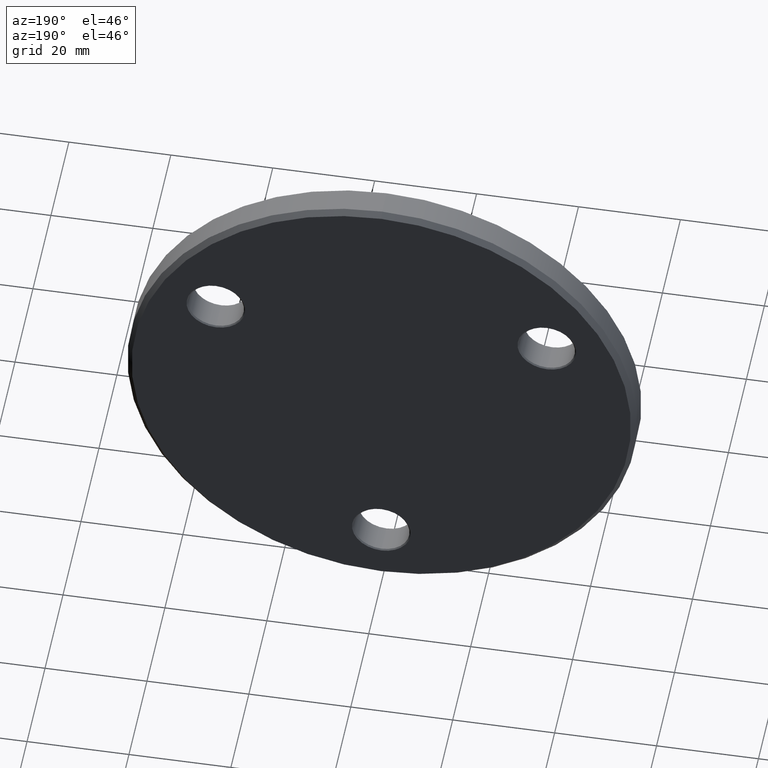
[diagram: clean part render]
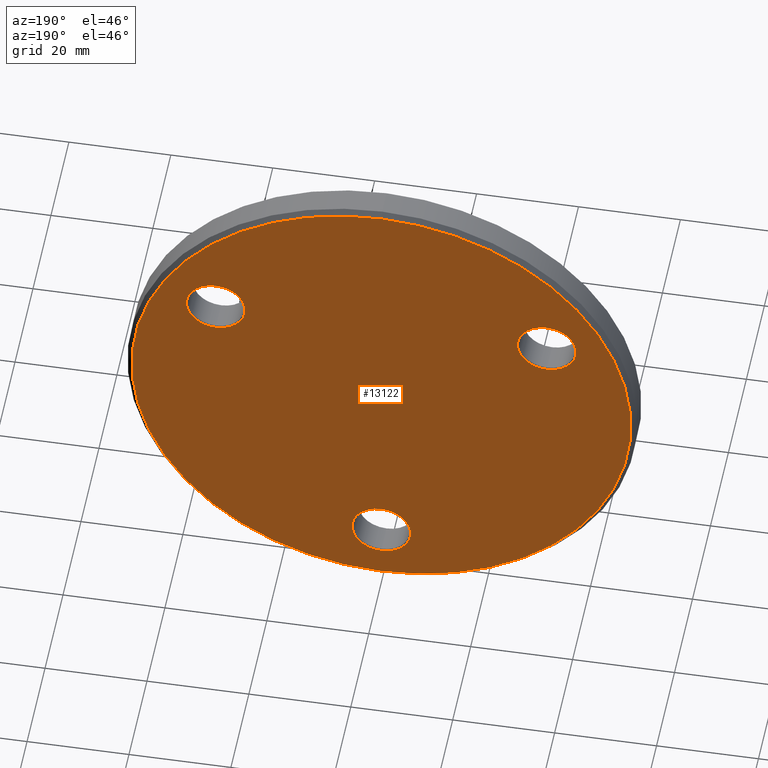
[diagram: same view with one face highlighted and labeled with its STEP entity id]
A machine part, auxiliary view. The second image highlights one B-rep face of the part: STEP entity #13122.
In plain terms, the highlighted planar face has unit normal (0, 1, 0).
Its self-contained STEP definition (entity closure, byte-faithful):
#261 = CARTESIAN_POINT ( 'NONE',  ( 32.47595264191645015, 6.000000000000000000, 18.74999999999999645 ) ) ;
#639 = DIRECTION ( 'NONE',  ( -0.000000000000000000, -1.000000000000000000, -0.000000000000000000 ) ) ;
#823 = ORIENTED_EDGE ( 'NONE', *, *, #10299, .T. ) ;
#961 = EDGE_CURVE ( 'NONE', #12895, #10992, #7882, .T. ) ;
#1145 = CARTESIAN_POINT ( 'NONE',  ( 0.000000000000000000, 6.000000000000000000, -49.00000000000002132 ) ) ;
#1268 = ORIENTED_EDGE ( 'NONE', *, *, #7532, .T. ) ;
#1280 = DIRECTION ( 'NONE',  ( 0.000000000000000000, 0.000000000000000000, 1.000000000000000000 ) ) ;
#1329 = EDGE_CURVE ( 'NONE', #9673, #10011, #9968, .T. ) ;
#1419 = AXIS2_PLACEMENT_3D ( 'NONE', #12653, #5580, #5547 ) ;
#2394 = FACE_BOUND ( 'NONE', #11115, .T. ) ;
#2409 = AXIS2_PLACEMENT_3D ( 'NONE', #11268, #12236, #7115 ) ;
#2755 = CARTESIAN_POINT ( 'NONE',  ( 6.062001655779400089E-15, 6.000000000000000000, 49.00000000000002132 ) ) ;
#2827 = EDGE_LOOP ( 'NONE', ( #1268, #8870 ) ) ;
#2939 = CIRCLE ( 'NONE', #10092, 49.00000000000002132 ) ;
#3003 = VERTEX_POINT ( 'NONE', #1145 ) ;
#3250 = CARTESIAN_POINT ( 'NONE',  ( 0.000000000000000000, 6.000000000000000000, 0.000000000000000000 ) ) ;
#3269 = VERTEX_POINT ( 'NONE', #2755 ) ;
#3523 = ORIENTED_EDGE ( 'NONE', *, *, #1329, .T. ) ;
#3753 = CARTESIAN_POINT ( 'NONE',  ( 32.47595264191645015, 6.000000000000000000, 18.74999999999999645 ) ) ;
#3974 = CARTESIAN_POINT ( 'NONE',  ( 0.000000000000000000, 6.000000000000000000, 0.000000000000000000 ) ) ;
#3982 = EDGE_CURVE ( 'NONE', #10011, #9673, #9979, .T. ) ;
#4248 = DIRECTION ( 'NONE',  ( -0.000000000000000000, -1.000000000000000000, -0.000000000000000000 ) ) ;
#4613 = EDGE_CURVE ( 'NONE', #8718, #5833, #11107, .T. ) ;
#4717 = DIRECTION ( 'NONE',  ( -0.000000000000000000, -1.000000000000000000, -0.000000000000000000 ) ) ;
#4888 = ORIENTED_EDGE ( 'NONE', *, *, #4613, .T. ) ;
#5547 = DIRECTION ( 'NONE',  ( 0.000000000000000000, 0.000000000000000000, 1.000000000000000000 ) ) ;
#5580 = DIRECTION ( 'NONE',  ( 0.000000000000000000, 1.000000000000000000, 0.000000000000000000 ) ) ;
#5664 = CIRCLE ( 'NONE', #9246, 5.750000000000018652 ) ;
#5709 = CARTESIAN_POINT ( 'NONE',  ( 0.000000000000000000, 6.000000000000000000, -37.50000000000000000 ) ) ;
#5833 = VERTEX_POINT ( 'NONE', #8682 ) ;
#6025 = CARTESIAN_POINT ( 'NONE',  ( 32.47595264191645015, 6.000000000000000000, 24.50000000000001421 ) ) ;
#6291 = CIRCLE ( 'NONE', #9614, 5.750000000000018652 ) ;
#6397 = CARTESIAN_POINT ( 'NONE',  ( -32.47595264191643594, 6.000000000000000000, 18.75000000000001776 ) ) ;
#6449 = FACE_BOUND ( 'NONE', #9416, .T. ) ;
#6843 = DIRECTION ( 'NONE',  ( 0.000000000000000000, 0.000000000000000000, 1.000000000000000000 ) ) ;
#6882 = DIRECTION ( 'NONE',  ( 0.000000000000000000, 0.000000000000000000, 1.000000000000000000 ) ) ;
#7069 = DIRECTION ( 'NONE',  ( 0.000000000000000000, -0.000000000000000000, 1.000000000000000000 ) ) ;
#7115 = DIRECTION ( 'NONE',  ( 0.000000000000000000, 0.000000000000000000, 1.000000000000000000 ) ) ;
#7318 = DIRECTION ( 'NONE',  ( 0.000000000000000000, 0.000000000000000000, 1.000000000000000000 ) ) ;
#7532 = EDGE_CURVE ( 'NONE', #3003, #3269, #2939, .T. ) ;
#7596 = ORIENTED_EDGE ( 'NONE', *, *, #3982, .T. ) ;
#7780 = CARTESIAN_POINT ( 'NONE',  ( -32.47595264191643594, 6.000000000000000000, 12.99999999999999822 ) ) ;
#7840 = DIRECTION ( 'NONE',  ( 0.000000000000000000, 0.000000000000000000, 1.000000000000000000 ) ) ;
#7882 = CIRCLE ( 'NONE', #11389, 5.750000000000018652 ) ;
#7935 = AXIS2_PLACEMENT_3D ( 'NONE', #261, #4248, #9395 ) ;
#8009 = PLANE ( 'NONE',  #10844 ) ;
#8466 = CARTESIAN_POINT ( 'NONE',  ( -32.47595264191643594, 6.000000000000000000, 18.75000000000001776 ) ) ;
#8516 = DIRECTION ( 'NONE',  ( -0.000000000000000000, -1.000000000000000000, -0.000000000000000000 ) ) ;
#8629 = EDGE_LOOP ( 'NONE', ( #7596, #3523 ) ) ;
#8682 = CARTESIAN_POINT ( 'NONE',  ( 7.041719095097303559E-16, 6.000000000000000000, -43.25000000000001421 ) ) ;
#8718 = VERTEX_POINT ( 'NONE', #12013 ) ;
#8870 = ORIENTED_EDGE ( 'NONE', *, *, #9914, .T. ) ;
#9049 = DIRECTION ( 'NONE',  ( 0.000000000000000000, 1.000000000000000000, 0.000000000000000000 ) ) ;
#9234 = CARTESIAN_POINT ( 'NONE',  ( 32.47595264191645015, 6.000000000000000000, 12.99999999999997691 ) ) ;
#9246 = AXIS2_PLACEMENT_3D ( 'NONE', #5709, #4717, #6843 ) ;
#9279 = DIRECTION ( 'NONE',  ( 0.000000000000000000, 1.000000000000000000, 0.000000000000000000 ) ) ;
#9395 = DIRECTION ( 'NONE',  ( 0.000000000000000000, 0.000000000000000000, 1.000000000000000000 ) ) ;
#9416 = EDGE_LOOP ( 'NONE', ( #4888, #823 ) ) ;
#9614 = AXIS2_PLACEMENT_3D ( 'NONE', #6397, #10492, #6882 ) ;
#9673 = VERTEX_POINT ( 'NONE', #9234 ) ;
#9686 = ORIENTED_EDGE ( 'NONE', *, *, #11726, .T. ) ;
#9914 = EDGE_CURVE ( 'NONE', #3269, #3003, #10696, .T. ) ;
#9968 = CIRCLE ( 'NONE', #7935, 5.750000000000018652 ) ;
#9979 = CIRCLE ( 'NONE', #13292, 5.750000000000018652 ) ;
#10011 = VERTEX_POINT ( 'NONE', #6025 ) ;
#10092 = AXIS2_PLACEMENT_3D ( 'NONE', #3250, #9279, #7318 ) ;
#10286 = FACE_BOUND ( 'NONE', #8629, .T. ) ;
#10299 = EDGE_CURVE ( 'NONE', #5833, #8718, #5664, .T. ) ;
#10492 = DIRECTION ( 'NONE',  ( -0.000000000000000000, -1.000000000000000000, -0.000000000000000000 ) ) ;
#10696 = CIRCLE ( 'NONE', #1419, 49.00000000000002132 ) ;
#10844 = AXIS2_PLACEMENT_3D ( 'NONE', #3974, #9049, #7069 ) ;
#10992 = VERTEX_POINT ( 'NONE', #11019 ) ;
#11019 = CARTESIAN_POINT ( 'NONE',  ( -32.47595264191643594, 6.000000000000000000, 24.50000000000003553 ) ) ;
#11107 = CIRCLE ( 'NONE', #2409, 5.750000000000018652 ) ;
#11115 = EDGE_LOOP ( 'NONE', ( #9686, #12328 ) ) ;
#11268 = CARTESIAN_POINT ( 'NONE',  ( 0.000000000000000000, 6.000000000000000000, -37.50000000000000000 ) ) ;
#11389 = AXIS2_PLACEMENT_3D ( 'NONE', #8466, #8516, #1280 ) ;
#11726 = EDGE_CURVE ( 'NONE', #10992, #12895, #6291, .T. ) ;
#12013 = CARTESIAN_POINT ( 'NONE',  ( 0.000000000000000000, 6.000000000000000000, -31.74999999999997868 ) ) ;
#12236 = DIRECTION ( 'NONE',  ( -0.000000000000000000, -1.000000000000000000, -0.000000000000000000 ) ) ;
#12328 = ORIENTED_EDGE ( 'NONE', *, *, #961, .T. ) ;
#12653 = CARTESIAN_POINT ( 'NONE',  ( 0.000000000000000000, 6.000000000000000000, 0.000000000000000000 ) ) ;
#12895 = VERTEX_POINT ( 'NONE', #7780 ) ;
#13053 = FACE_OUTER_BOUND ( 'NONE', #2827, .T. ) ;
#13122 = ADVANCED_FACE ( 'NONE', ( #13053, #10286, #2394, #6449 ), #8009, .T. ) ;
#13292 = AXIS2_PLACEMENT_3D ( 'NONE', #3753, #639, #7840 ) ;